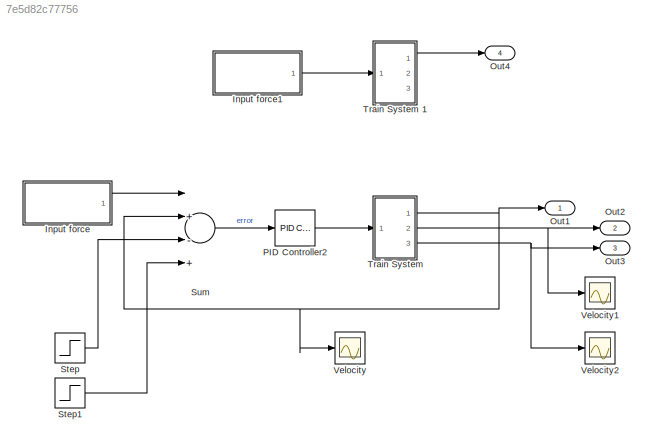
MODEL slx_7e5d82c77756
KIND model
CONFIG AbsTol = auto
CONFIG EnableMultiTasking = off
CONFIG FixedStep = auto
CONFIG MaxStep = auto
CONFIG MinStep = auto
CONFIG RelTol = 1e-3
CONFIG SampleTimeConstraint = Unconstrained
CONFIG Solver = VariableStepAuto
CONFIG SolverName = VariableStepAuto
CONFIG StartTime = 0.0
CONFIG StopTime = 400
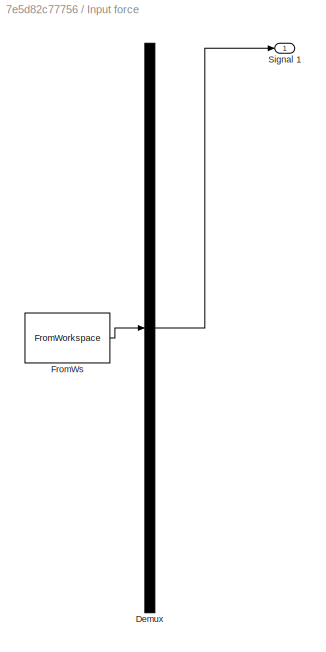
BLOCK [SubSystem] Input force
  ClipboardFcn = sigbuilder_block('clipboard');
  CloseFcn = sigbuilder_block('close');
  ContinueFcn = sigbuilder_block('continue');
  CopyFcn = sigbuilder_block('copy');
  DeleteFcn = sigbuilder_block('delete');
  LoadFcn = sigbuilder_block('load');
  MaskHideContents = on
  ModelCloseFcn = sigbuilder_block('modelClose');
  NameChangeFcn = sigbuilder_block('namechange');
  OpenFcn = sigbuilder_block('open',[437.6 199.2 550.4 400 ]);
  PauseFcn = sigbuilder_block('pause');
  Ports = [0, 1]
  PreSaveFcn = sigbuilder_block('preSave');
  RequestExecContextInheritance = off
  StartFcn = sigbuilder_block('start');
  StopFcn = sigbuilder_block('stop');
  Tag = STV Subsys
BLOCK [Demux] Input force/Demux
  Outputs = 1
  Ports = [1, 1]
  Tag = STV Demux
BLOCK [FromWorkspace] Input force/FromWs
  SampleTime = 0
  Tag = STV FromWs
  VariableName = tuvar
  ZeroCross = on
BLOCK [Outport] Input force/Signal 1
  IconDisplay = Port number
  Tag = STV Outport
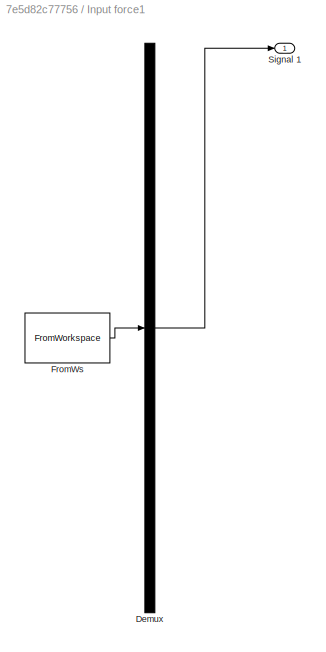
BLOCK [SubSystem] Input force1
  ClipboardFcn = sigbuilder_block('clipboard');
  CloseFcn = sigbuilder_block('close');
  ContinueFcn = sigbuilder_block('continue');
  CopyFcn = sigbuilder_block('copy');
  DeleteFcn = sigbuilder_block('delete');
  LoadFcn = sigbuilder_block('load');
  MaskHideContents = on
  ModelCloseFcn = sigbuilder_block('modelClose');
  NameChangeFcn = sigbuilder_block('namechange');
  OpenFcn = sigbuilder_block('open',[437.6 199.2 550.4 400 ]);
  PauseFcn = sigbuilder_block('pause');
  Ports = [0, 1]
  PreSaveFcn = sigbuilder_block('preSave');
  RequestExecContextInheritance = off
  StartFcn = sigbuilder_block('start');
  StopFcn = sigbuilder_block('stop');
  Tag = STV Subsys
BLOCK [Demux] Input force1/Demux
  Outputs = 1
  Ports = [1, 1]
  Tag = STV Demux
BLOCK [FromWorkspace] Input force1/FromWs
  SampleTime = 0
  Tag = STV FromWs
  VariableName = tuvar
  ZeroCross = on
BLOCK [Outport] Input force1/Signal 1
  IconDisplay = Port number
  Tag = STV Outport
BLOCK [Outport] Out1
  IconDisplay = Port number
BLOCK [Outport] Out2
  IconDisplay = Port number
  Port = 2
BLOCK [Outport] Out3
  IconDisplay = Port number
  Port = 3
BLOCK [Outport] Out4
  IconDisplay = Port number
  Port = 4
BLOCK [Reference] PID Controller2  REF=simulink/Continuous/PID Controller
  Ports = [1, 1]
  SourceBlock = simulink/Continuous/PID Controller
  SourceProductBaseCode = SL
  SourceProductName = Simulink
  SourceType = PID 1dof
BLOCK [Step] Step
  After = (M1 + M2) * g * sth * (-1)
  SampleTime = 0
  Time = 500
BLOCK [Step] Step1
  After = (M1 + M2) * g * sth
  SampleTime = 0
  Time = 600
BLOCK [Sum] Sum
  InputSameDT = off
  Inputs = |+-++
  OutDataTypeStr = Inherit: Inherit via internal rule
  Ports = [4, 1]
  SaturateOnIntegerOverflow = off
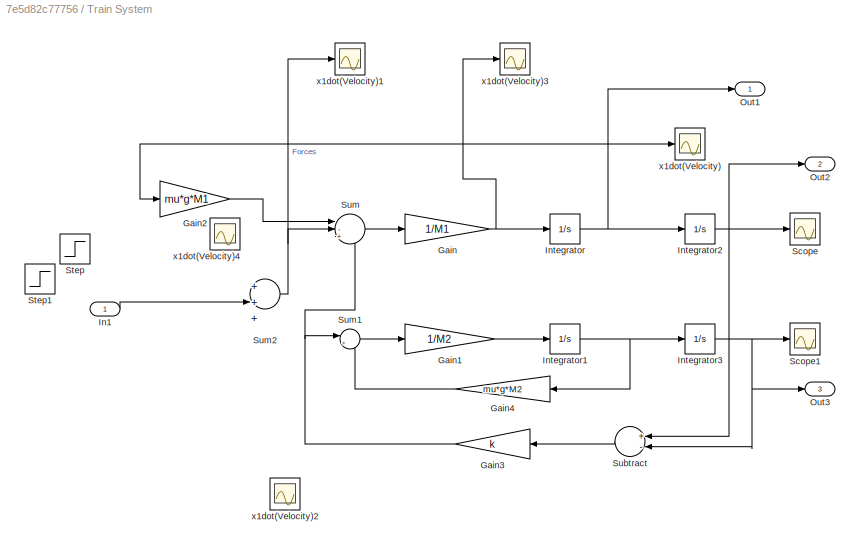
BLOCK [SubSystem] Train System 
  Ports = [1, 3]
  RequestExecContextInheritance = off
BLOCK [Gain] Train System /Gain
  Gain = 1/M1
  OutDataTypeStr = Inherit: Inherit via internal rule
  ParamDataTypeStr = Inherit: Inherit via internal rule
  SaturateOnIntegerOverflow = off
BLOCK [Gain] Train System /Gain1
  Gain = 1/M2
  OutDataTypeStr = Inherit: Inherit via internal rule
  ParamDataTypeStr = Inherit: Inherit via internal rule
  SaturateOnIntegerOverflow = off
BLOCK [Gain] Train System /Gain2
  Gain = mu*g*M1
  OutDataTypeStr = Inherit: Inherit via internal rule
  ParamDataTypeStr = Inherit: Inherit via internal rule
  SaturateOnIntegerOverflow = off
BLOCK [Gain] Train System /Gain3
  Gain = k
  OutDataTypeStr = Inherit: Inherit via internal rule
  ParamDataTypeStr = Inherit: Inherit via internal rule
  SaturateOnIntegerOverflow = off
BLOCK [Gain] Train System /Gain4
  Gain = mu*g*M2
  OutDataTypeStr = Inherit: Inherit via internal rule
  ParamDataTypeStr = Inherit: Inherit via internal rule
  SaturateOnIntegerOverflow = off
BLOCK [Inport] Train System /In1
  IconDisplay = Port number
BLOCK [Integrator] Train System /Integrator
  Ports = [1, 1]
BLOCK [Integrator] Train System /Integrator1
  Ports = [1, 1]
BLOCK [Integrator] Train System /Integrator2
  Ports = [1, 1]
BLOCK [Integrator] Train System /Integrator3
  Ports = [1, 1]
BLOCK [Outport] Train System /Out1
  IconDisplay = Port number
BLOCK [Outport] Train System /Out2
  IconDisplay = Port number
  Port = 2
BLOCK [Outport] Train System /Out3
  IconDisplay = Port number
  Port = 3
BLOCK [Scope] Train System /Scope
  Floating = off
  NumInputPorts = 1
  Ports = [1]
  ScopeSpecificationString = Simulink.scopes.TimeScopeBlockCfg('CurrentConfiguration', extmgr.ConfigurationSet(extmgr.Configuration('Core','General UI',true),extmgr.Configuration('Core','Source UI',true),extmgr.Configuration('Sources','WiredSimulink',true),extmgr.Configuration('Visuals','Time Domain',true,'SerializedDisplays',{struct('MinYLimReal','-2153.18492','MaxYLimReal','19378.66425','YLabelReal','','MinYLimMag','  0.000...<+1357ch>
BLOCK [Scope] Train System /Scope1
  Floating = off
  NumInputPorts = 1
  Ports = [1]
  ScopeSpecificationString = Simulink.scopes.TimeScopeBlockCfg('CurrentConfiguration', extmgr.ConfigurationSet(extmgr.Configuration('Core','General UI',true),extmgr.Configuration('Core','Source UI',true),extmgr.Configuration('Sources','WiredSimulink',true,'DataLoggingVariableName','ScopeData1'),extmgr.Configuration('Visuals','Time Domain',true,'SerializedDisplays',{struct('MinYLimReal','-2151.99908','MaxYLimReal','19367.99169...<+1396ch>
BLOCK [Step] Train System /Step
  After = (M1 + M2) * g * sth * (-1)
  SampleTime = 0
  Time = 500
BLOCK [Step] Train System /Step1
  After = (M1 + M2) * g * sth
  SampleTime = 0
  Time = 600
BLOCK [Sum] Train System /Subtract
  InputSameDT = off
  Inputs = +-
  OutDataTypeStr = Inherit: Inherit via internal rule
  Ports = [2, 1]
  SaturateOnIntegerOverflow = off
BLOCK [Sum] Train System /Sum
  IconShape = round
  InputSameDT = off
  Inputs = |-+-
  OutDataTypeStr = Inherit: Inherit via internal rule
  Ports = [3, 1]
  SaturateOnIntegerOverflow = off
BLOCK [Sum] Train System /Sum1
  IconShape = round
  InputSameDT = off
  Inputs = |+-
  OutDataTypeStr = Inherit: Inherit via internal rule
  Ports = [2, 1]
  SaturateOnIntegerOverflow = off
BLOCK [Sum] Train System /Sum2
  InputSameDT = off
  Inputs = |+++-
  OutDataTypeStr = Inherit: Inherit via internal rule
  Ports = [4, 1]
  SaturateOnIntegerOverflow = off
BLOCK [Scope] Train System /x1dot(Velocity)
  Floating = off
  NumInputPorts = 1
  Ports = [1]
  ScopeSpecificationString = Simulink.scopes.TimeScopeBlockCfg('CurrentConfiguration', extmgr.ConfigurationSet(extmgr.Configuration('Core','General UI',true),extmgr.Configuration('Core','Source UI',true),extmgr.Configuration('Sources','WiredSimulink',true,'DataLoggingVariableName','ScopeData2'),extmgr.Configuration('Visuals','Time Domain',true,'SerializedDisplays',{struct('MinYLimReal','-10.04347','MaxYLimReal','90.39125','YL...<+1409ch>
BLOCK [Scope] Train System /x1dot(Velocity)1
  Floating = off
  NumInputPorts = 1
  Ports = [1]
  ScopeSpecificationString = Simulink.scopes.TimeScopeBlockCfg('CurrentConfiguration', extmgr.ConfigurationSet(extmgr.Configuration('Core','General UI',true),extmgr.Configuration('Core','Source UI',true),extmgr.Configuration('Sources','WiredSimulink',true,'DataLoggingVariableName','ScopeData1'),extmgr.Configuration('Visuals','Time Domain',true,'SerializedDisplays',{struct('MinYLimReal','-1518138.88087','MaxYLimReal','13663249...<+1415ch>
BLOCK [Scope] Train System /x1dot(Velocity)2
  Floating = off
  NumInputPorts = 1
  Ports = [1]
  ScopeSpecificationString = Simulink.scopes.TimeScopeBlockCfg('CurrentConfiguration', extmgr.ConfigurationSet(extmgr.Configuration('Core','General UI',true),extmgr.Configuration('Core','Source UI',true),extmgr.Configuration('Sources','WiredSimulink',true,'DataLoggingVariableName','ScopeData2'),extmgr.Configuration('Visuals','Time Domain',true,'SerializedDisplays',{struct('MinYLimReal','-1.00000','MaxYLimReal','1.00000','YLab...<+1368ch>  <repeated x4 — deduplicated; at blocks: x1dot(Velocity)2, x1dot(Velocity)4>
BLOCK [Scope] Train System /x1dot(Velocity)3
  Floating = off
  NumInputPorts = 1
  Ports = [1]
  ScopeSpecificationString = Simulink.scopes.TimeScopeBlockCfg('CurrentConfiguration', extmgr.ConfigurationSet(extmgr.Configuration('Core','General UI',true),extmgr.Configuration('Core','Source UI',true),extmgr.Configuration('Sources','WiredSimulink',true,'DataLoggingVariableName','ScopeData3'),extmgr.Configuration('Visuals','Time Domain',true,'SerializedDisplays',{struct('MinYLimReal','-0.29397','MaxYLimReal','0.72044','YLab...<+1363ch>
BLOCK [Scope] Train System /x1dot(Velocity)4
  Floating = off
  NumInputPorts = 1
  Ports = [1]
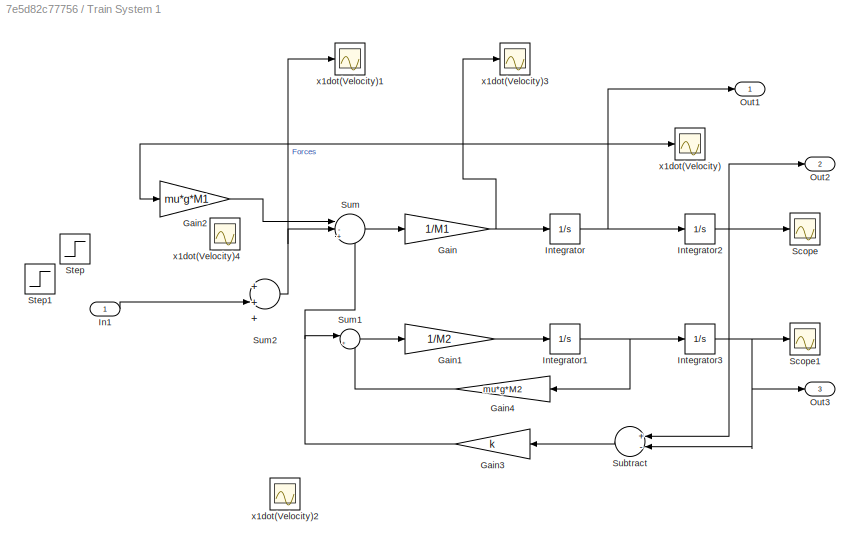
BLOCK [SubSystem] Train System 1
  Ports = [1, 3]
  RequestExecContextInheritance = off
BLOCK [Gain] Train System 1/Gain
  Gain = 1/M1
  OutDataTypeStr = Inherit: Inherit via internal rule
  ParamDataTypeStr = Inherit: Inherit via internal rule
  SaturateOnIntegerOverflow = off
BLOCK [Gain] Train System 1/Gain1
  Gain = 1/M2
  OutDataTypeStr = Inherit: Inherit via internal rule
  ParamDataTypeStr = Inherit: Inherit via internal rule
  SaturateOnIntegerOverflow = off
BLOCK [Gain] Train System 1/Gain2
  Gain = mu*g*M1
  OutDataTypeStr = Inherit: Inherit via internal rule
  ParamDataTypeStr = Inherit: Inherit via internal rule
  SaturateOnIntegerOverflow = off
BLOCK [Gain] Train System 1/Gain3
  Gain = k
  OutDataTypeStr = Inherit: Inherit via internal rule
  ParamDataTypeStr = Inherit: Inherit via internal rule
  SaturateOnIntegerOverflow = off
BLOCK [Gain] Train System 1/Gain4
  Gain = mu*g*M2
  OutDataTypeStr = Inherit: Inherit via internal rule
  ParamDataTypeStr = Inherit: Inherit via internal rule
  SaturateOnIntegerOverflow = off
BLOCK [Inport] Train System 1/In1
  IconDisplay = Port number
BLOCK [Integrator] Train System 1/Integrator
  Ports = [1, 1]
BLOCK [Integrator] Train System 1/Integrator1
  Ports = [1, 1]
BLOCK [Integrator] Train System 1/Integrator2
  Ports = [1, 1]
BLOCK [Integrator] Train System 1/Integrator3
  Ports = [1, 1]
BLOCK [Outport] Train System 1/Out1
  IconDisplay = Port number
BLOCK [Outport] Train System 1/Out2
  IconDisplay = Port number
  Port = 2
BLOCK [Outport] Train System 1/Out3
  IconDisplay = Port number
  Port = 3
BLOCK [Scope] Train System 1/Scope
  Floating = off
  NumInputPorts = 1
  Ports = [1]
  ScopeSpecificationString = Simulink.scopes.TimeScopeBlockCfg('CurrentConfiguration', extmgr.ConfigurationSet(extmgr.Configuration('Core','General UI',true),extmgr.Configuration('Core','Source UI',true),extmgr.Configuration('Sources','WiredSimulink',true),extmgr.Configuration('Visuals','Time Domain',true,'SerializedDisplays',{struct('MinYLimReal','-2153.18492','MaxYLimReal','19378.66425','YLabelReal','','MinYLimMag','  0.000...<+1357ch>
BLOCK [Scope] Train System 1/Scope1
  Floating = off
  NumInputPorts = 1
  Ports = [1]
  ScopeSpecificationString = Simulink.scopes.TimeScopeBlockCfg('CurrentConfiguration', extmgr.ConfigurationSet(extmgr.Configuration('Core','General UI',true),extmgr.Configuration('Core','Source UI',true),extmgr.Configuration('Sources','WiredSimulink',true,'DataLoggingVariableName','ScopeData1'),extmgr.Configuration('Visuals','Time Domain',true,'SerializedDisplays',{struct('MinYLimReal','-2151.99908','MaxYLimReal','19367.99169...<+1396ch>
BLOCK [Step] Train System 1/Step
  After = (M1 + M2) * g * sth * (-1)
  SampleTime = 0
  Time = 500
BLOCK [Step] Train System 1/Step1
  After = (M1 + M2) * g * sth
  SampleTime = 0
  Time = 600
BLOCK [Sum] Train System 1/Subtract
  InputSameDT = off
  Inputs = +-
  OutDataTypeStr = Inherit: Inherit via internal rule
  Ports = [2, 1]
  SaturateOnIntegerOverflow = off
BLOCK [Sum] Train System 1/Sum
  IconShape = round
  InputSameDT = off
  Inputs = |-+-
  OutDataTypeStr = Inherit: Inherit via internal rule
  Ports = [3, 1]
  SaturateOnIntegerOverflow = off
BLOCK [Sum] Train System 1/Sum1
  IconShape = round
  InputSameDT = off
  Inputs = |+-
  OutDataTypeStr = Inherit: Inherit via internal rule
  Ports = [2, 1]
  SaturateOnIntegerOverflow = off
BLOCK [Sum] Train System 1/Sum2
  InputSameDT = off
  Inputs = |+++-
  OutDataTypeStr = Inherit: Inherit via internal rule
  Ports = [4, 1]
  SaturateOnIntegerOverflow = off
BLOCK [Scope] Train System 1/x1dot(Velocity)
  Floating = off
  NumInputPorts = 1
  Ports = [1]
  ScopeSpecificationString = Simulink.scopes.TimeScopeBlockCfg('CurrentConfiguration', extmgr.ConfigurationSet(extmgr.Configuration('Core','General UI',true),extmgr.Configuration('Core','Source UI',true),extmgr.Configuration('Sources','WiredSimulink',true,'DataLoggingVariableName','ScopeData2'),extmgr.Configuration('Visuals','Time Domain',true,'SerializedDisplays',{struct('MinYLimReal','-10.04347','MaxYLimReal','90.39125','YL...<+1409ch>
BLOCK [Scope] Train System 1/x1dot(Velocity)1
  Floating = off
  NumInputPorts = 1
  Ports = [1]
  ScopeSpecificationString = Simulink.scopes.TimeScopeBlockCfg('CurrentConfiguration', extmgr.ConfigurationSet(extmgr.Configuration('Core','General UI',true),extmgr.Configuration('Core','Source UI',true),extmgr.Configuration('Sources','WiredSimulink',true,'DataLoggingVariableName','ScopeData1'),extmgr.Configuration('Visuals','Time Domain',true,'SerializedDisplays',{struct('MinYLimReal','-1518138.88087','MaxYLimReal','13663249...<+1415ch>
BLOCK [Scope] Train System 1/x1dot(Velocity)2
  Floating = off
  NumInputPorts = 1
  Ports = [1]
BLOCK [Scope] Train System 1/x1dot(Velocity)3
  Floating = off
  NumInputPorts = 1
  Ports = [1]
  ScopeSpecificationString = Simulink.scopes.TimeScopeBlockCfg('CurrentConfiguration', extmgr.ConfigurationSet(extmgr.Configuration('Core','General UI',true),extmgr.Configuration('Core','Source UI',true),extmgr.Configuration('Sources','WiredSimulink',true,'DataLoggingVariableName','ScopeData3'),extmgr.Configuration('Visuals','Time Domain',true,'SerializedDisplays',{struct('MinYLimReal','-0.29397','MaxYLimReal','0.72044','YLab...<+1363ch>
BLOCK [Scope] Train System 1/x1dot(Velocity)4
  Floating = off
  NumInputPorts = 1
  Ports = [1]
BLOCK [Scope] Velocity
  Floating = off
  NumInputPorts = 1
  Ports = [1]
  ScopeSpecificationString = Simulink.scopes.TimeScopeBlockCfg('CurrentConfiguration', extmgr.ConfigurationSet(extmgr.Configuration('Core','General UI',true),extmgr.Configuration('Core','Source UI',true),extmgr.Configuration('Sources','WiredSimulink',true,'DataLoggingVariableName','ScopeData1'),extmgr.Configuration('Visuals','Time Domain',true,'SerializedDisplays',{struct('MinYLimReal','-10.04347','MaxYLimReal','90.39125','YL...<+1411ch>
BLOCK [Scope] Velocity1
  Floating = off
  NumInputPorts = 1
  Ports = [1]
  ScopeSpecificationString = Simulink.scopes.TimeScopeBlockCfg('CurrentConfiguration', extmgr.ConfigurationSet(extmgr.Configuration('Core','General UI',true),extmgr.Configuration('Core','Source UI',true),extmgr.Configuration('Sources','WiredSimulink',true,'DataLoggingVariableName','ScopeData3'),extmgr.Configuration('Visuals','Time Domain',true,'SerializedDisplays',{struct('MinYLimReal','-2153.18492','MaxYLimReal','19378.66425...<+1431ch>
BLOCK [Scope] Velocity2
  Floating = off
  NumInputPorts = 1
  Ports = [1]
  ScopeSpecificationString = Simulink.scopes.TimeScopeBlockCfg('CurrentConfiguration', extmgr.ConfigurationSet(extmgr.Configuration('Core','General UI',true),extmgr.Configuration('Core','Source UI',true),extmgr.Configuration('Sources','WiredSimulink',true,'DataLoggingVariableName','ScopeData4'),extmgr.Configuration('Visuals','Time Domain',true,'SerializedDisplays',{struct('MinYLimReal','-2151.99908','MaxYLimReal','19367.99169...<+1431ch>
LINE Input force1:1 -> Train System 1:1
LINE Input force:1 -> Sum:1
LINE PID Controller2:1 -> Train System :1
LINE Step1:1 -> Sum:4
LINE Step:1 -> Sum:3
LINE Sum:1 -> PID Controller2:1
LINE Train System /Gain1:1 -> Train System /Integrator1:1
LINE Train System /Gain2:1 -> Train System /Sum:1
NET Train System /Gain3:1 -> Train System /Sum1:1, Train System /Sum:3
LINE Train System /Gain4:1 -> Train System /Sum1:2
NET Train System /Gain:1 -> Train System /Integrator:1, Train System /x1dot(Velocity)3:1
LINE Train System /In1:1 -> Train System /Sum2:3
NET Train System /Integrator1:1 -> Train System /Gain4:1, Train System /Integrator3:1
NET Train System /Integrator2:1 -> Train System /Out2:1, Train System /Scope:1, Train System /Subtract:1
NET Train System /Integrator3:1 -> Train System /Out3:1, Train System /Scope1:1, Train System /Subtract:2
NET Train System /Integrator:1 -> Train System /Gain2:1, Train System /Integrator2:1, Train System /Out1:1, Train System /x1dot(Velocity):1
LINE Train System /Subtract:1 -> Train System /Gain3:1
LINE Train System /Sum1:1 -> Train System /Gain1:1
NET Train System /Sum2:1 -> Train System /Sum:2, Train System /x1dot(Velocity)1:1
LINE Train System /Sum:1 -> Train System /Gain:1
LINE Train System 1/Gain1:1 -> Train System 1/Integrator1:1
LINE Train System 1/Gain2:1 -> Train System 1/Sum:1
NET Train System 1/Gain3:1 -> Train System 1/Sum1:1, Train System 1/Sum:3
LINE Train System 1/Gain4:1 -> Train System 1/Sum1:2
NET Train System 1/Gain:1 -> Train System 1/Integrator:1, Train System 1/x1dot(Velocity)3:1
LINE Train System 1/In1:1 -> Train System 1/Sum2:3
NET Train System 1/Integrator1:1 -> Train System 1/Gain4:1, Train System 1/Integrator3:1
NET Train System 1/Integrator2:1 -> Train System 1/Out2:1, Train System 1/Scope:1, Train System 1/Subtract:1
NET Train System 1/Integrator3:1 -> Train System 1/Out3:1, Train System 1/Scope1:1, Train System 1/Subtract:2
NET Train System 1/Integrator:1 -> Train System 1/Gain2:1, Train System 1/Integrator2:1, Train System 1/Out1:1, Train System 1/x1dot(Velocity):1
LINE Train System 1/Subtract:1 -> Train System 1/Gain3:1
LINE Train System 1/Sum1:1 -> Train System 1/Gain1:1
NET Train System 1/Sum2:1 -> Train System 1/Sum:2, Train System 1/x1dot(Velocity)1:1
LINE Train System 1/Sum:1 -> Train System 1/Gain:1
LINE Train System 1:1 -> Out4:1
NET Train System :1 -> Out1:1, Sum:2, Velocity:1
NET Train System :2 -> Out2:1, Velocity1:1
NET Train System :3 -> Out3:1, Velocity2:1
note: NET lines group one-source signal fan-out (src -> all destinations, sorted); 1:1 wires keep LINE
